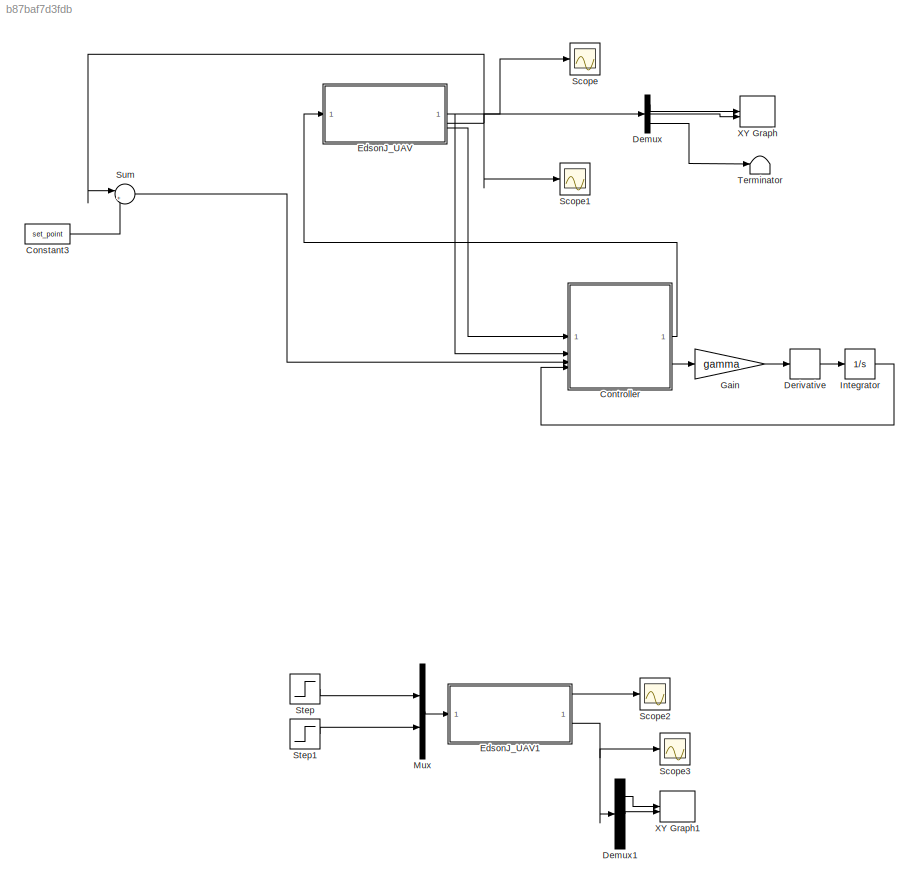
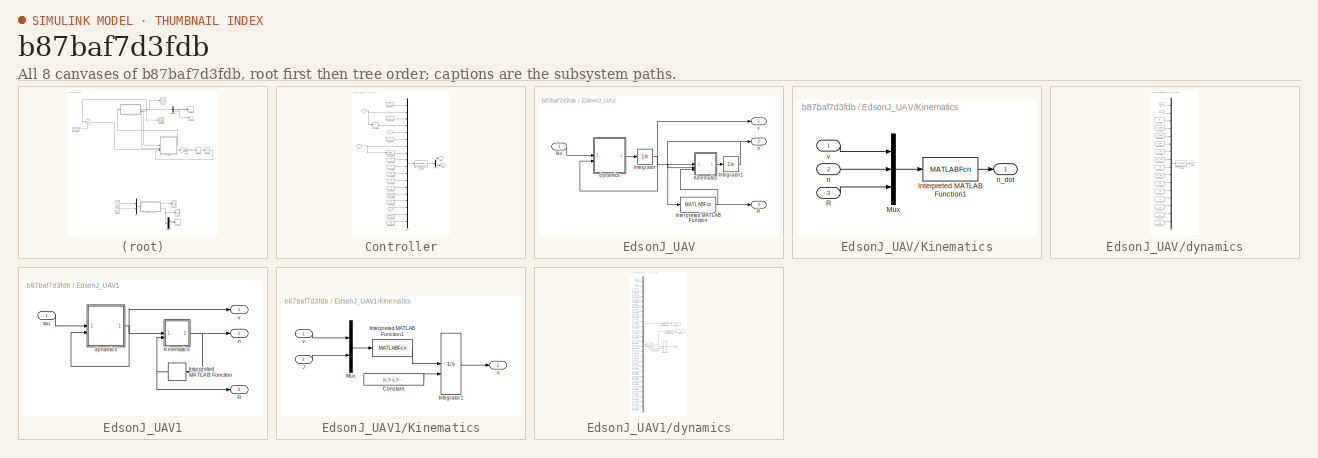
[diagram: thumbnail index - all 8 canvases of the model, root first then tree order]
MODEL slx_b87baf7d3fdb
KIND model
CONFIG AbsTol = auto
CONFIG EnableMultiTasking = off
CONFIG FixedStep = 1e-3
CONFIG MaxStep = auto
CONFIG MinStep = auto
CONFIG RelTol = 1e-3
CONFIG SampleTimeConstraint = Unconstrained
CONFIG SolverName = ode4
CONFIG StartTime = 0.0
CONFIG StopTime = 100
BLOCK [Constant] Constant3
  Value = set_point
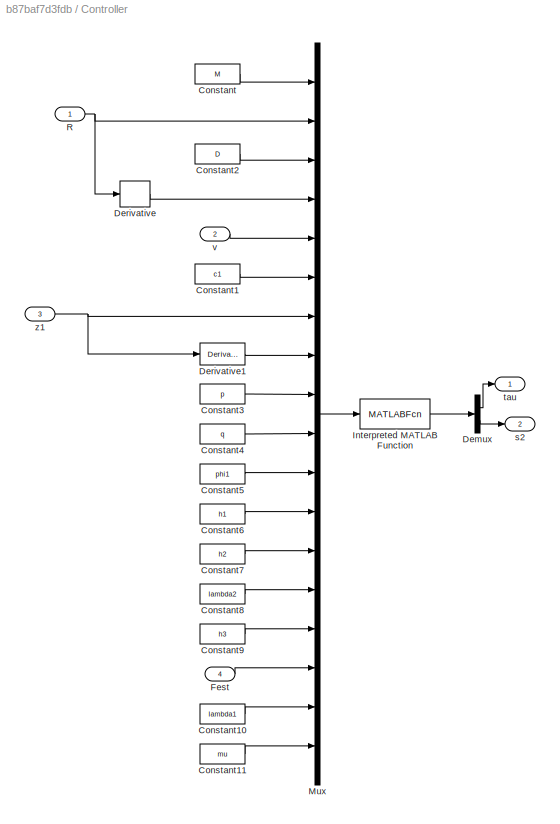
BLOCK [SubSystem] Controller
BLOCK [Constant] Controller/Constant
  Value = M
BLOCK [Constant] Controller/Constant1
  Value = c1
BLOCK [Constant] Controller/Constant10
  Value = lambda1
BLOCK [Constant] Controller/Constant11
  Value = mu
BLOCK [Constant] Controller/Constant2
  Value = D
BLOCK [Constant] Controller/Constant3
  Value = p
BLOCK [Constant] Controller/Constant4
  Value = q
BLOCK [Constant] Controller/Constant5
  Value = phi1
BLOCK [Constant] Controller/Constant6
  Value = h1
BLOCK [Constant] Controller/Constant7
  Value = h2
BLOCK [Constant] Controller/Constant8
  Value = lambda2
BLOCK [Constant] Controller/Constant9
  Value = h3
BLOCK [Demux] Controller/Demux
  Outputs = 2
BLOCK [Derivative] Controller/Derivative
BLOCK [Derivative] Controller/Derivative1
BLOCK [Inport] Controller/Fest
  Port = 4
BLOCK [MATLABFcn] Controller/Interpreted MATLAB Function
  MATLABFcn = control_ABFTISMC
BLOCK [Mux] Controller/Mux
  DisplayOption = bar
  Inputs = 18
BLOCK [Inport] Controller/R
BLOCK [Outport] Controller/s2
  Port = 2
BLOCK [Outport] Controller/tau
BLOCK [Inport] Controller/v
  Port = 2
BLOCK [Inport] Controller/z1
  Port = 3
BLOCK [Demux] Demux
  Outputs = 3
BLOCK [Demux] Demux1
  Commented = on
  Outputs = 3
BLOCK [Derivative] Derivative
BLOCK [SubSystem] EdsonJ_UAV
BLOCK [Integrator] EdsonJ_UAV/Integrator
  InitialCondition = [0,0,0]
BLOCK [Integrator] EdsonJ_UAV/Integrator1
  InitialCondition = [0,0,0]
BLOCK [MATLABFcn] EdsonJ_UAV/Interpreted MATLAB Function
  MATLABFcn = J_matrix
BLOCK [SubSystem] EdsonJ_UAV/Kinematics
BLOCK [MATLABFcn] EdsonJ_UAV/Kinematics/Interpreted MATLAB Function1
  MATLABFcn = kinematic
BLOCK [Mux] EdsonJ_UAV/Kinematics/Mux
  DisplayOption = bar
  Inputs = 3
BLOCK [Inport] EdsonJ_UAV/Kinematics/R
  Port = 3
BLOCK [Inport] EdsonJ_UAV/Kinematics/n
  Port = 2
BLOCK [Outport] EdsonJ_UAV/Kinematics/n_dot
BLOCK [Inport] EdsonJ_UAV/Kinematics/v
BLOCK [Outport] EdsonJ_UAV/R
  Port = 3
BLOCK [SubSystem] EdsonJ_UAV/dynamics
BLOCK [Constant] EdsonJ_UAV/dynamics/Constant
  Value = m
BLOCK [Constant] EdsonJ_UAV/dynamics/Constant1
  Value = X_u_dot
BLOCK [Constant] EdsonJ_UAV/dynamics/Constant10
  Value = Y_v
BLOCK [Constant] EdsonJ_UAV/dynamics/Constant11
  Value = Y_vv
BLOCK [Constant] EdsonJ_UAV/dynamics/Constant12
  Value = N_r
BLOCK [Constant] EdsonJ_UAV/dynamics/Constant13
  Value = N_rr
BLOCK [Constant] EdsonJ_UAV/dynamics/Constant2
  Value = Y_v_dot
BLOCK [Constant] EdsonJ_UAV/dynamics/Constant3
  Value = Y_r_dot
BLOCK [Constant] EdsonJ_UAV/dynamics/Constant4
  Value = x_g
BLOCK [Constant] EdsonJ_UAV/dynamics/Constant5
  Value = N_v_dot
BLOCK [Constant] EdsonJ_UAV/dynamics/Constant6
  Value = I_z
BLOCK [Constant] EdsonJ_UAV/dynamics/Constant7
  Value = N_r_dot
BLOCK [Constant] EdsonJ_UAV/dynamics/Constant8
  Value = X_u
BLOCK [Constant] EdsonJ_UAV/dynamics/Constant9
  Value = X_uu
BLOCK [MATLABFcn] EdsonJ_UAV/dynamics/Interpreted MATLAB Function
  MATLABFcn = dinamic
BLOCK [Mux] EdsonJ_UAV/dynamics/Mux
  DisplayOption = bar
  Inputs = 16
BLOCK [Inport] EdsonJ_UAV/dynamics/tao
BLOCK [Inport] EdsonJ_UAV/dynamics/v
  Port = 2
BLOCK [Outport] EdsonJ_UAV/dynamics/v_dot
BLOCK [Outport] EdsonJ_UAV/n
  Port = 2
BLOCK [Inport] EdsonJ_UAV/tau
BLOCK [Outport] EdsonJ_UAV/v
BLOCK [SubSystem] EdsonJ_UAV1
  Commented = on
BLOCK [MATLABFcn] EdsonJ_UAV1/Interpreted MATLAB Function
  MATLABFcn = J_matrix
  NameLocation = top
BLOCK [SubSystem] EdsonJ_UAV1/Kinematics
BLOCK [Constant] EdsonJ_UAV1/Kinematics/Constant
  Value = [x_0, y_0, yaw_0]
BLOCK [Integrator] EdsonJ_UAV1/Kinematics/Integrator1
  InitialCondition = [0,0,0]
  InitialConditionSource = external
BLOCK [MATLABFcn] EdsonJ_UAV1/Kinematics/Interpreted MATLAB Function1
  MATLABFcn = kinematic
BLOCK [Inport] EdsonJ_UAV1/Kinematics/J
  Port = 2
BLOCK [Mux] EdsonJ_UAV1/Kinematics/Mux
  DisplayOption = bar
  Inputs = 2
BLOCK [Outport] EdsonJ_UAV1/Kinematics/n
BLOCK [Inport] EdsonJ_UAV1/Kinematics/v
BLOCK [Outport] EdsonJ_UAV1/R
  Port = 3
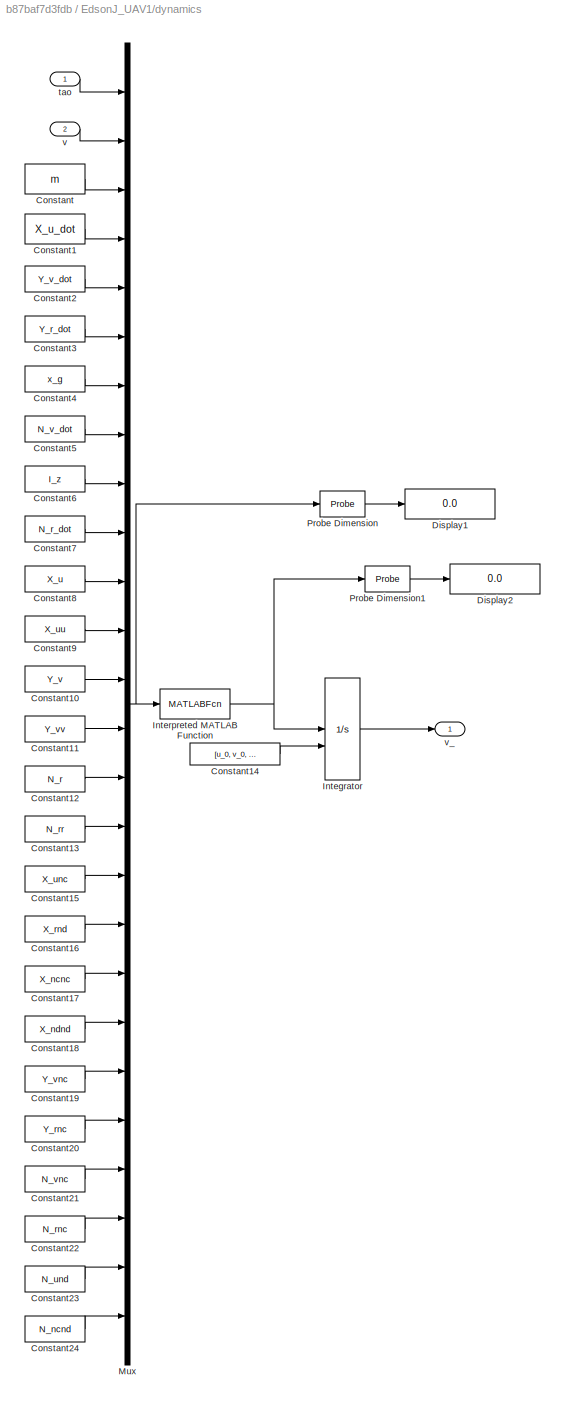
BLOCK [SubSystem] EdsonJ_UAV1/dynamics
BLOCK [Constant] EdsonJ_UAV1/dynamics/Constant
  Value = m
BLOCK [Constant] EdsonJ_UAV1/dynamics/Constant1
  Value = X_u_dot
BLOCK [Constant] EdsonJ_UAV1/dynamics/Constant10
  Value = Y_v
BLOCK [Constant] EdsonJ_UAV1/dynamics/Constant11
  Value = Y_vv
BLOCK [Constant] EdsonJ_UAV1/dynamics/Constant12
  Value = N_r
BLOCK [Constant] EdsonJ_UAV1/dynamics/Constant13
  Value = N_rr
BLOCK [Constant] EdsonJ_UAV1/dynamics/Constant14
  Value = [u_0, v_0, r_0]
BLOCK [Constant] EdsonJ_UAV1/dynamics/Constant15
  Value = X_unc
BLOCK [Constant] EdsonJ_UAV1/dynamics/Constant16
  Value = X_rnd
BLOCK [Constant] EdsonJ_UAV1/dynamics/Constant17
  Value = X_ncnc
BLOCK [Constant] EdsonJ_UAV1/dynamics/Constant18
  Value = X_ndnd
BLOCK [Constant] EdsonJ_UAV1/dynamics/Constant19
  Value = Y_vnc
BLOCK [Constant] EdsonJ_UAV1/dynamics/Constant2
  Value = Y_v_dot
BLOCK [Constant] EdsonJ_UAV1/dynamics/Constant20
  Value = Y_rnc
BLOCK [Constant] EdsonJ_UAV1/dynamics/Constant21
  Value = N_vnc
BLOCK [Constant] EdsonJ_UAV1/dynamics/Constant22
  Value = N_rnc
BLOCK [Constant] EdsonJ_UAV1/dynamics/Constant23
  Value = N_und
BLOCK [Constant] EdsonJ_UAV1/dynamics/Constant24
  Value = N_ncnd
BLOCK [Constant] EdsonJ_UAV1/dynamics/Constant3
  Value = Y_r_dot
BLOCK [Constant] EdsonJ_UAV1/dynamics/Constant4
  Value = x_g
BLOCK [Constant] EdsonJ_UAV1/dynamics/Constant5
  Value = N_v_dot
BLOCK [Constant] EdsonJ_UAV1/dynamics/Constant6
  Value = I_z
BLOCK [Constant] EdsonJ_UAV1/dynamics/Constant7
  Value = N_r_dot
BLOCK [Constant] EdsonJ_UAV1/dynamics/Constant8
  Value = X_u
BLOCK [Constant] EdsonJ_UAV1/dynamics/Constant9
  Value = X_uu
BLOCK [Display] EdsonJ_UAV1/dynamics/Display1
  Decimation = 1
BLOCK [Display] EdsonJ_UAV1/dynamics/Display2
  Decimation = 1
BLOCK [Integrator] EdsonJ_UAV1/dynamics/Integrator
  InitialCondition = [0,0,0]
  InitialConditionSource = external
BLOCK [MATLABFcn] EdsonJ_UAV1/dynamics/Interpreted MATLAB Function
  MATLABFcn = dinamic
BLOCK [Mux] EdsonJ_UAV1/dynamics/Mux
  DisplayOption = bar
  Inputs = 26
BLOCK [Probe] EdsonJ_UAV1/dynamics/Probe Dimension
  ProbeComplexSignal = off
  ProbeSampleTime = off
  ProbeSignalDimensions = on
  ProbeWidth = off
BLOCK [Probe] EdsonJ_UAV1/dynamics/Probe Dimension1
  ProbeComplexSignal = off
  ProbeSampleTime = off
  ProbeSignalDimensions = on
  ProbeWidth = off
BLOCK [Inport] EdsonJ_UAV1/dynamics/tao
BLOCK [Inport] EdsonJ_UAV1/dynamics/v
  Port = 2
BLOCK [Outport] EdsonJ_UAV1/dynamics/v_
BLOCK [Outport] EdsonJ_UAV1/n
  Port = 2
BLOCK [Inport] EdsonJ_UAV1/tau
BLOCK [Outport] EdsonJ_UAV1/v
BLOCK [Gain] Gain
  Gain = gamma
BLOCK [Integrator] Integrator
  InitialCondition = [0,0,0]'
BLOCK [Mux] Mux
  Commented = on
  DisplayOption = bar
  Inputs = 2
BLOCK [Scope] Scope
  ActiveDisplayYMaximum = 4.478113109634338E+26
  ActiveDisplayYMinimum = -2.1186471793877021E+26
  Floating = off
  GraphicalSettings = {"AxesScalingProperties":{"AlignXAxis":"Center","AlignYAxis":"Center","AutoScaleXAxisLimits":false,"AxesScaling":"Manual","AxesScalingNumUpdates":10,"ExpandOnly":true,"ScaleAxesLimitsAtStop":false,"XAxisDataRange":100,"YAxisDataRange":80},"DisplayProperties":{"ColorOrder":["auto","auto","auto","auto","auto","auto","auto","auto","auto","auto","auto","auto","auto","auto","auto","auto","auto","auto",...<+2265ch>
  MultipleDisplayCache = [{"MaxYLimMag":3.0824659562245438E+32,"MaxYLimReal":4.478113109634338E+26,"MinYLimMag":0,"MinYLimReal":-2.1186471793877021E+26,"PlotAsMagnitudePhase":false,"ShowGrid":true,"ShowLegend":false,"Title":"%<SignalLabel>","YLabel":""}]
  NumInputPorts = 1
  ScopeFrameLocation = window
  WasSavedAsWebScope = on
  WindowPosition = [1.000000,49.000000,1536.000000,793.000000,]
BLOCK [Scope] Scope1
  ActiveDisplayYMaximum = 4.6906781291110869E+26
  ActiveDisplayYMinimum = -3.5145777569055263E+26
  DataLoggingVariableName = ScopeData1
  Floating = off
  GraphicalSettings = {"AxesScalingProperties":{"AlignXAxis":"Center","AlignYAxis":"Center","AutoScaleXAxisLimits":false,"AxesScaling":"Manual","AxesScalingNumUpdates":10,"ExpandOnly":true,"ScaleAxesLimitsAtStop":false,"XAxisDataRange":100,"YAxisDataRange":80},"DisplayProperties":{"ColorOrder":["auto","auto","auto","auto","auto","auto","auto","auto","auto","auto","auto","auto","auto","auto","auto","auto","auto","auto",...<+2265ch>
  MultipleDisplayCache = [{"MaxYLimMag":3.0824659562245438E+32,"MaxYLimReal":4.6906781291110869E+26,"MinYLimMag":0,"MinYLimReal":-3.5145777569055263E+26,"PlotAsMagnitudePhase":false,"ShowGrid":true,"ShowLegend":false,"Title":"%<SignalLabel>","YLabel":""}]
  NumInputPorts = 1
  ScopeFrameLocation = window
  WasSavedAsWebScope = on
  WindowPosition = [9.000000,57.000000,1520.000000,777.000000,]
BLOCK [Scope] Scope2
  ActiveDisplayYMaximum = 0.13206649615815735
  ActiveDisplayYMinimum = -0.014674055128684147
  Commented = on
  DataLoggingVariableName = ScopeData2
  Floating = off
  GraphicalSettings = {"AxesScalingProperties":{"AlignXAxis":"Center","AlignYAxis":"Center","AutoScaleXAxisLimits":false,"AxesScaling":"Manual","AxesScalingNumUpdates":10,"ExpandOnly":true,"ScaleAxesLimitsAtStop":false,"XAxisDataRange":100,"YAxisDataRange":80},"DisplayProperties":{"ColorOrder":["auto","auto","auto","auto","auto","auto","auto","auto","auto","auto","auto","auto","auto","auto","auto","auto","auto","auto",...<+2300ch>
  MultipleDisplayCache = [{"MaxYLimMag":0.13206649615815735,"MaxYLimReal":0.13206649615815735,"MinYLimMag":0,"MinYLimReal":-0.014674055128684147,"PlotAsMagnitudePhase":false,"ShowGrid":true,"ShowLegend":true,"Title":"%<SignalLabel>","YLabel":""}]
  NumInputPorts = 1
  ScopeFrameLocation = window
  ShowLegend = on
  WasSavedAsWebScope = on
  WindowPosition = [0.000000,36.000000,1536.000000,793.000000,]
BLOCK [Scope] Scope3
  ActiveDisplayYMaximum = 21.081039558840153
  ActiveDisplayYMinimum = -2.3702438288098757
  Commented = on
  DataLoggingVariableName = ScopeData3
  Floating = off
  GraphicalSettings = {"Style":{"BackgroundColor":[0.12941176470588237,0.12941176470588237,0.12941176470588237],"AxesColor":[0.07058823529411765,0.07058823529411765,0.07058823529411765],"LabelsColor":[0.8509803921568627,0.8509803921568627,0.8509803921568627],"PreserveColors":false,"Visible":[true,true,true],"LineStyle":["-","-","-"],"LineWidth":[1.5,1.5,1.5],"BarWidth":[0.9,0.9,0.9],"LineColor":["auto","auto","auto"],"...<+2268ch>
  MultipleDisplayCache = [{"MaxYLimMag":21.081039558840153,"MaxYLimReal":21.081039558840153,"MinYLimMag":0,"MinYLimReal":-2.3702438288098757,"PlotAsMagnitudePhase":false,"ShowGrid":true,"ShowLegend":true,"Title":"%<SignalLabel>","YLabel":""}]
  NumInputPorts = 1
  ScopeFrameLocation = window
  ShowLegend = on
  WasSavedAsWebScope = on
  WindowPosition = [1.000000,49.000000,1536.000000,793.000000,]
BLOCK [Step] Step
  After = 0
  Commented = on
  SampleTime = 0
BLOCK [Step] Step1
  After = 0
  Before = 100
  Commented = on
  SampleTime = 0
BLOCK [Sum] Sum
  Inputs = |+-
BLOCK [Terminator] Terminator
BLOCK [Record] XY Graph
  CompatibilityTag = XY
  FileSettingsInternal = {"entries":[{"content":{"excelSettings":{"content":{},"type":"Streamout.ExcelSettings"},"parquetSettings":{"content":{},"type":"Streamout.ParquetSettings"}},"type":"Streamout.FileSettingStorage","uuid":""}],"packageUris":["http:\/\/schema.mathworks.com\/mf0\/streamout_blocks\/R2020a"],"version":"1.0"}
  FrameSettings = [0, 0]
  Layout = [1 1]
  NumPorts = 2.0
  SignalsInternal = {"entries":[{"content":{"signals":[{"content":{"blockPath":[],"dimensions":[1],"domain":"","lineColor":"#a2142f","plots":[ 1 ],"port":1,"signalID":1,"signalName":"Demux:1"},"type":"RecordBlkView.Signal","uuid":""},{"content":{"blockPath":[],"dimensions":[1],"domain":"","lineColor":"#139fff","plots":[ 1 ],"port":2,"signalID":2,"signalName":"Demux:2"},"type":"RecordBlkView.Signal","uuid":""}]},"type...<+138ch>
  VisualizationBindings = {"xyplotplugin":{"info":[{"series":[{"bindingParametersList":[{"parameter":"X-Axis","signalID":1,"signalName":"Demux:1"},{"parameter":"Y-Axis","signalID":2,"signalName":"Demux:2"}],"seriesID":0}],"subplotID":1}]}}
BLOCK [Record] XY Graph1
  Commented = on
  CompatibilityTag = XY
  FileSettingsInternal = {"entries":[{"content":{"excelSettings":{"content":{},"type":"Streamout.ExcelSettings"},"parquetSettings":{"content":{},"type":"Streamout.ParquetSettings"}},"type":"Streamout.FileSettingStorage","uuid":""}],"packageUris":["http:\/\/schema.mathworks.com\/mf0\/streamout_blocks\/R2020a"],"version":"1.0"}
  FrameSettings = [0, 0]
  Layout = [1 1]
  NumPorts = 2.0
  SignalsInternal = {"entries":[{"content":{"signals":[{"content":{"blockPath":[],"dimensions":[1],"domain":"","lineColor":"#a2142f","plots":[ 1 ],"port":1,"signalID":1,"signalName":"Demux1:1"},"type":"RecordBlkView.Signal","uuid":""},{"content":{"blockPath":[],"dimensions":[1],"domain":"","lineColor":"#139fff","plots":[ 1 ],"port":2,"signalID":2,"signalName":"Demux1:2"},"type":"RecordBlkView.Signal","uuid":""}]},"ty...<+140ch>
  VisualizationBindings = {"xyplotplugin":{"info":[{"series":[{"bindingParametersList":[{"parameter":"X-Axis","signalID":1,"signalName":"Demux1:1"},{"parameter":"Y-Axis","signalID":2,"signalName":"Demux1:2"}],"seriesID":0}],"subplotID":1}]}}
LINE Constant3:1 -> Sum:2
LINE Controller/Constant10:1 -> Controller/Mux:17
LINE Controller/Constant11:1 -> Controller/Mux:18
LINE Controller/Constant1:1 -> Controller/Mux:6
LINE Controller/Constant2:1 -> Controller/Mux:3
LINE Controller/Constant3:1 -> Controller/Mux:9
LINE Controller/Constant4:1 -> Controller/Mux:10
LINE Controller/Constant5:1 -> Controller/Mux:11
LINE Controller/Constant6:1 -> Controller/Mux:12
LINE Controller/Constant7:1 -> Controller/Mux:13
LINE Controller/Constant8:1 -> Controller/Mux:14
LINE Controller/Constant9:1 -> Controller/Mux:15
LINE Controller/Constant:1 -> Controller/Mux:1
LINE Controller/Demux:1 -> Controller/tau:1
LINE Controller/Demux:2 -> Controller/s2:1
LINE Controller/Derivative1:1 -> Controller/Mux:8
LINE Controller/Derivative:1 -> Controller/Mux:4
LINE Controller/Fest:1 -> Controller/Mux:16
LINE Controller/Interpreted MATLAB Function:1 -> Controller/Demux:1
LINE Controller/Mux:1 -> Controller/Interpreted MATLAB Function:1
NET Controller/R:1 -> Controller/Derivative:1, Controller/Mux:2
LINE Controller/v:1 -> Controller/Mux:5
NET Controller/z1:1 -> Controller/Derivative1:1, Controller/Mux:7
LINE Controller:1 -> EdsonJ_UAV:1
LINE Controller:2 -> Gain:1
LINE Demux1:1 -> XY Graph1:1
LINE Demux1:2 -> XY Graph1:2
LINE Demux:1 -> XY Graph:1
LINE Demux:2 -> XY Graph:2
LINE Demux:3 -> Terminator:1
LINE Derivative:1 -> Integrator:1
NET EdsonJ_UAV/Integrator1:1 -> EdsonJ_UAV/Interpreted MATLAB Function:1, EdsonJ_UAV/Kinematics:2, EdsonJ_UAV/n:1
NET EdsonJ_UAV/Integrator:1 -> EdsonJ_UAV/Kinematics:1, EdsonJ_UAV/dynamics:2, EdsonJ_UAV/v:1
NET EdsonJ_UAV/Interpreted MATLAB Function:1 -> EdsonJ_UAV/Kinematics:3, EdsonJ_UAV/R:1
LINE EdsonJ_UAV/Kinematics/Interpreted MATLAB Function1:1 -> EdsonJ_UAV/Kinematics/n_dot:1
LINE EdsonJ_UAV/Kinematics/Mux:1 -> EdsonJ_UAV/Kinematics/Interpreted MATLAB Function1:1
LINE EdsonJ_UAV/Kinematics/R:1 -> EdsonJ_UAV/Kinematics/Mux:3
LINE EdsonJ_UAV/Kinematics/n:1 -> EdsonJ_UAV/Kinematics/Mux:2
LINE EdsonJ_UAV/Kinematics/v:1 -> EdsonJ_UAV/Kinematics/Mux:1
LINE EdsonJ_UAV/Kinematics:1 -> EdsonJ_UAV/Integrator1:1
LINE EdsonJ_UAV/dynamics/Constant10:1 -> EdsonJ_UAV/dynamics/Mux:13
LINE EdsonJ_UAV/dynamics/Constant11:1 -> EdsonJ_UAV/dynamics/Mux:14
LINE EdsonJ_UAV/dynamics/Constant12:1 -> EdsonJ_UAV/dynamics/Mux:15
LINE EdsonJ_UAV/dynamics/Constant13:1 -> EdsonJ_UAV/dynamics/Mux:16
LINE EdsonJ_UAV/dynamics/Constant1:1 -> EdsonJ_UAV/dynamics/Mux:4
LINE EdsonJ_UAV/dynamics/Constant2:1 -> EdsonJ_UAV/dynamics/Mux:5
LINE EdsonJ_UAV/dynamics/Constant3:1 -> EdsonJ_UAV/dynamics/Mux:6
LINE EdsonJ_UAV/dynamics/Constant4:1 -> EdsonJ_UAV/dynamics/Mux:7
LINE EdsonJ_UAV/dynamics/Constant5:1 -> EdsonJ_UAV/dynamics/Mux:8
LINE EdsonJ_UAV/dynamics/Constant6:1 -> EdsonJ_UAV/dynamics/Mux:9
LINE EdsonJ_UAV/dynamics/Constant7:1 -> EdsonJ_UAV/dynamics/Mux:10
LINE EdsonJ_UAV/dynamics/Constant8:1 -> EdsonJ_UAV/dynamics/Mux:11
LINE EdsonJ_UAV/dynamics/Constant9:1 -> EdsonJ_UAV/dynamics/Mux:12
LINE EdsonJ_UAV/dynamics/Constant:1 -> EdsonJ_UAV/dynamics/Mux:3
LINE EdsonJ_UAV/dynamics/Interpreted MATLAB Function:1 -> EdsonJ_UAV/dynamics/v_dot:1
LINE EdsonJ_UAV/dynamics/Mux:1 -> EdsonJ_UAV/dynamics/Interpreted MATLAB Function:1
LINE EdsonJ_UAV/dynamics/tao:1 -> EdsonJ_UAV/dynamics/Mux:1
LINE EdsonJ_UAV/dynamics/v:1 -> EdsonJ_UAV/dynamics/Mux:2
LINE EdsonJ_UAV/dynamics:1 -> EdsonJ_UAV/Integrator:1
LINE EdsonJ_UAV/tau:1 -> EdsonJ_UAV/dynamics:1
NET EdsonJ_UAV1/Interpreted MATLAB Function:1 -> EdsonJ_UAV1/Kinematics:2, EdsonJ_UAV1/R:1
LINE EdsonJ_UAV1/Kinematics/Constant:1 -> EdsonJ_UAV1/Kinematics/Integrator1:2
LINE EdsonJ_UAV1/Kinematics/Integrator1:1 -> EdsonJ_UAV1/Kinematics/n:1
LINE EdsonJ_UAV1/Kinematics/Interpreted MATLAB Function1:1 -> EdsonJ_UAV1/Kinematics/Integrator1:1
LINE EdsonJ_UAV1/Kinematics/J:1 -> EdsonJ_UAV1/Kinematics/Mux:2
LINE EdsonJ_UAV1/Kinematics/Mux:1 -> EdsonJ_UAV1/Kinematics/Interpreted MATLAB Function1:1
LINE EdsonJ_UAV1/Kinematics/v:1 -> EdsonJ_UAV1/Kinematics/Mux:1
NET EdsonJ_UAV1/Kinematics:1 -> EdsonJ_UAV1/Interpreted MATLAB Function:1, EdsonJ_UAV1/n:1
LINE EdsonJ_UAV1/dynamics/Constant10:1 -> EdsonJ_UAV1/dynamics/Mux:13
LINE EdsonJ_UAV1/dynamics/Constant11:1 -> EdsonJ_UAV1/dynamics/Mux:14
LINE EdsonJ_UAV1/dynamics/Constant12:1 -> EdsonJ_UAV1/dynamics/Mux:15
LINE EdsonJ_UAV1/dynamics/Constant13:1 -> EdsonJ_UAV1/dynamics/Mux:16
LINE EdsonJ_UAV1/dynamics/Constant14:1 -> EdsonJ_UAV1/dynamics/Integrator:2
LINE EdsonJ_UAV1/dynamics/Constant15:1 -> EdsonJ_UAV1/dynamics/Mux:17
LINE EdsonJ_UAV1/dynamics/Constant16:1 -> EdsonJ_UAV1/dynamics/Mux:18
LINE EdsonJ_UAV1/dynamics/Constant17:1 -> EdsonJ_UAV1/dynamics/Mux:19
LINE EdsonJ_UAV1/dynamics/Constant18:1 -> EdsonJ_UAV1/dynamics/Mux:20
LINE EdsonJ_UAV1/dynamics/Constant19:1 -> EdsonJ_UAV1/dynamics/Mux:21
LINE EdsonJ_UAV1/dynamics/Constant1:1 -> EdsonJ_UAV1/dynamics/Mux:4
LINE EdsonJ_UAV1/dynamics/Constant20:1 -> EdsonJ_UAV1/dynamics/Mux:22
LINE EdsonJ_UAV1/dynamics/Constant21:1 -> EdsonJ_UAV1/dynamics/Mux:23
LINE EdsonJ_UAV1/dynamics/Constant22:1 -> EdsonJ_UAV1/dynamics/Mux:24
LINE EdsonJ_UAV1/dynamics/Constant23:1 -> EdsonJ_UAV1/dynamics/Mux:25
LINE EdsonJ_UAV1/dynamics/Constant24:1 -> EdsonJ_UAV1/dynamics/Mux:26
LINE EdsonJ_UAV1/dynamics/Constant2:1 -> EdsonJ_UAV1/dynamics/Mux:5
LINE EdsonJ_UAV1/dynamics/Constant3:1 -> EdsonJ_UAV1/dynamics/Mux:6
LINE EdsonJ_UAV1/dynamics/Constant4:1 -> EdsonJ_UAV1/dynamics/Mux:7
LINE EdsonJ_UAV1/dynamics/Constant5:1 -> EdsonJ_UAV1/dynamics/Mux:8
LINE EdsonJ_UAV1/dynamics/Constant6:1 -> EdsonJ_UAV1/dynamics/Mux:9
LINE EdsonJ_UAV1/dynamics/Constant7:1 -> EdsonJ_UAV1/dynamics/Mux:10
LINE EdsonJ_UAV1/dynamics/Constant8:1 -> EdsonJ_UAV1/dynamics/Mux:11
LINE EdsonJ_UAV1/dynamics/Constant9:1 -> EdsonJ_UAV1/dynamics/Mux:12
LINE EdsonJ_UAV1/dynamics/Constant:1 -> EdsonJ_UAV1/dynamics/Mux:3
LINE EdsonJ_UAV1/dynamics/Integrator:1 -> EdsonJ_UAV1/dynamics/v_:1
NET EdsonJ_UAV1/dynamics/Interpreted MATLAB Function:1 -> EdsonJ_UAV1/dynamics/Integrator:1, EdsonJ_UAV1/dynamics/Probe Dimension1:1
NET EdsonJ_UAV1/dynamics/Mux:1 -> EdsonJ_UAV1/dynamics/Interpreted MATLAB Function:1, EdsonJ_UAV1/dynamics/Probe Dimension:1
LINE EdsonJ_UAV1/dynamics/Probe Dimension1:1 -> EdsonJ_UAV1/dynamics/Display2:1
LINE EdsonJ_UAV1/dynamics/Probe Dimension:1 -> EdsonJ_UAV1/dynamics/Display1:1
LINE EdsonJ_UAV1/dynamics/tao:1 -> EdsonJ_UAV1/dynamics/Mux:1
LINE EdsonJ_UAV1/dynamics/v:1 -> EdsonJ_UAV1/dynamics/Mux:2
NET EdsonJ_UAV1/dynamics:1 -> EdsonJ_UAV1/Kinematics:1, EdsonJ_UAV1/dynamics:2, EdsonJ_UAV1/v:1
LINE EdsonJ_UAV1/tau:1 -> EdsonJ_UAV1/dynamics:1
LINE EdsonJ_UAV1:1 -> Scope2:1
NET EdsonJ_UAV1:2 -> Demux1:1, Scope3:1
NET EdsonJ_UAV:1 -> Controller:2, Scope:1
NET EdsonJ_UAV:2 -> Demux:1, Scope1:1, Sum:1
LINE EdsonJ_UAV:3 -> Controller:1
LINE Gain:1 -> Derivative:1
LINE Integrator:1 -> Controller:4
LINE Mux:1 -> EdsonJ_UAV1:1
LINE Step1:1 -> Mux:2
LINE Step:1 -> Mux:1
LINE Sum:1 -> Controller:3
note: NET lines group one-source signal fan-out (src -> all destinations, sorted); 1:1 wires keep LINE
